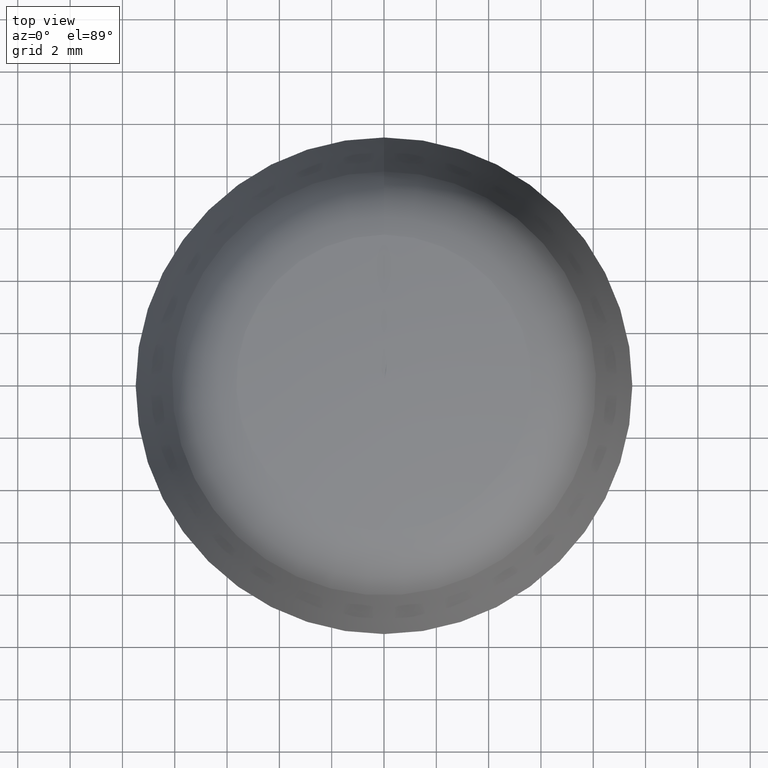
[diagram: clean part render]
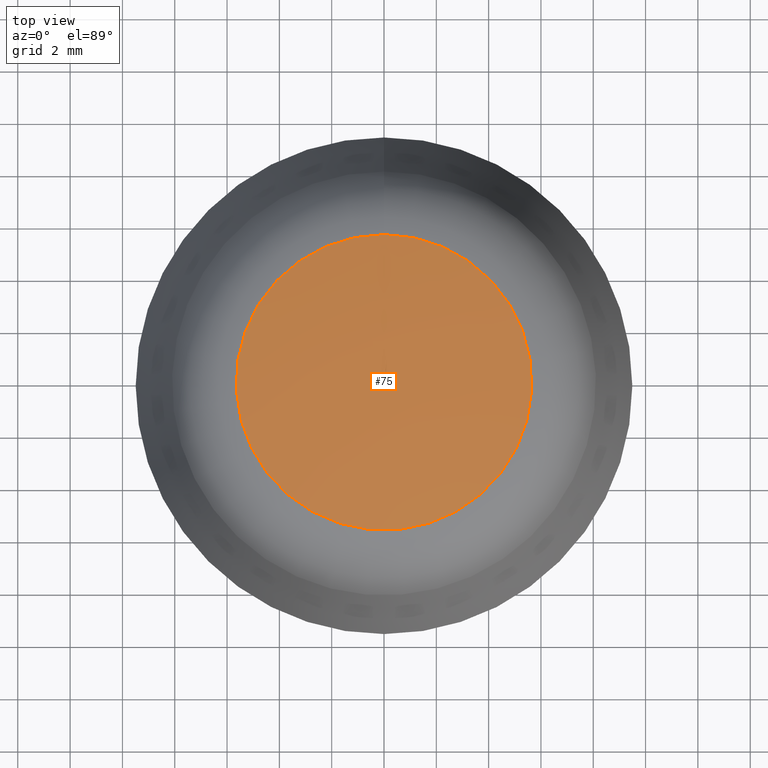
[diagram: same view with one face highlighted and labeled with its STEP entity id]
A machine part, top view. The second image highlights one B-rep face of the part: STEP entity #75.
In plain terms, the highlighted face is a freeform B-spline surface patch.
Its self-contained STEP definition (entity closure, byte-faithful):
#75 = ADVANCED_FACE( '', ( #85, #86 ), #87, .T. );
#85 = FACE_BOUND( '', #111, .T. );
#86 = FACE_OUTER_BOUND( '', #112, .T. );
#87 = ( B_SPLINE_SURFACE( 3, 3, ( ( #114, #115, #116, #117, #118, #119, #120 ), ( #121, #122, #123, #124, #125, #126, #127 ), ( #128, #129, #130, #131, #132, #133, #134 ), ( #135, #136, #137, #138, #139, #140, #141 ) ), .UNSPECIFIED., .F., .T., .F. )B_SPLINE_SURFACE_WITH_KNOTS( ( 4, 4 ), ( 4, 3, 4 ), ( 0.000000000000000, 6.28318530717959 ), ( -1.56945058362842, -1.49579099199942, -1.42213140037043 ), .UNSPECIFIED. )RATIONAL_B_SPLINE_SURFACE( ( ( 1.00000000000000, 0.333333333333333, 0.333333333333333, 1.00000000000000, 0.333333333333333, 0.333333333333333, 1.00000000000000 ), ( 0.998192239111499, 0.332730746370500, 0.332730746370500, 0.998192239111499, 0.332730746370500, 0.332730746370500, 0.998192239111499 ), ( 0.998192239111499, 0.332730746370500, 0.332730746370500, 0.998192239111499, 0.332730746370500, 0.332730746370500, 0.998192239111499 ), ( 1.00000000000000, 0.333333333333333, 0.333333333333333, 1.00000000000000, 0.333333333333333, 0.333333333333333, 1.00000000000000 ) ) )BOUNDED_SURFACE(  )REPRESENTATION_ITEM( '' )GEOMETRIC_REPRESENTATION_ITEM(  )SURFACE(  ) );
#111 = VERTEX_LOOP( '', #171 );
#112 = EDGE_LOOP( '', ( #172 ) );
#114 = CARTESIAN_POINT( '', ( 0.000000000000000, 5.65072872926940, 7.37536860387088 ) );
#115 = CARTESIAN_POINT( '', ( 11.3014574585388, 5.65072872926940, 7.37536860387088 ) );
#116 = CARTESIAN_POINT( '', ( 11.3014574585388, -5.65072872926940, 7.37536860387088 ) );
#117 = CARTESIAN_POINT( '', ( 0.000000000000000, -5.65072872926940, 7.37536860387088 ) );
#118 = CARTESIAN_POINT( '', ( -11.3014574585388, -5.65072872926940, 7.37536860387088 ) );
#119 = CARTESIAN_POINT( '', ( -11.3014574585388, 5.65072872926940, 7.37536860387088 ) );
#120 = CARTESIAN_POINT( '', ( 0.000000000000000, 5.65072872926940, 7.37536860387088 ) );
#121 = CARTESIAN_POINT( '', ( 0.000000000000000, 3.77929359492807, 7.65565330096397 ) );
#122 = CARTESIAN_POINT( '', ( 7.55858718985615, 3.77929359492807, 7.65565330096397 ) );
#123 = CARTESIAN_POINT( '', ( 7.55858718985615, -3.77929359492807, 7.65565330096398 ) );
#124 = CARTESIAN_POINT( '', ( 0.000000000000000, -3.77929359492807, 7.65565330096397 ) );
#125 = CARTESIAN_POINT( '', ( -7.55858718985615, -3.77929359492807, 7.65565330096398 ) );
#126 = CARTESIAN_POINT( '', ( -7.55858718985615, 3.77929359492807, 7.65565330096398 ) );
#127 = CARTESIAN_POINT( '', ( 0.000000000000000, 3.77929359492807, 7.65565330096397 ) );
#128 = CARTESIAN_POINT( '', ( 0.000000000000000, 1.89230612970154, 7.79745344041976 ) );
#129 = CARTESIAN_POINT( '', ( 3.78461225940309, 1.89230612970154, 7.79745344041976 ) );
#130 = CARTESIAN_POINT( '', ( 3.78461225940309, -1.89230612970154, 7.79745344041976 ) );
#131 = CARTESIAN_POINT( '', ( 0.000000000000000, -1.89230612970154, 7.79745344041976 ) );
#132 = CARTESIAN_POINT( '', ( -3.78461225940309, -1.89230612970154, 7.79745344041976 ) );
#133 = CARTESIAN_POINT( '', ( -3.78461225940309, 1.89230612970154, 7.79745344041976 ) );
#134 = CARTESIAN_POINT( '', ( 0.000000000000000, 1.89230612970154, 7.79745344041976 ) );
#135 = CARTESIAN_POINT( '', ( 0.000000000000000, 3.49655200626575E-015, 7.79999999999999 ) );
#136 = CARTESIAN_POINT( '', ( 6.77781283537976E-015, 3.49655200626575E-015, 7.80000000000000 ) );
#137 = CARTESIAN_POINT( '', ( 6.77781283537976E-015, -3.28126082911401E-015, 7.80000000000000 ) );
#138 = CARTESIAN_POINT( '', ( 0.000000000000000, -3.28126082911401E-015, 7.79999999999999 ) );
#139 = CARTESIAN_POINT( '', ( -6.77781283537976E-015, -3.28126082911401E-015, 7.80000000000000 ) );
#140 = CARTESIAN_POINT( '', ( -6.77781283537976E-015, 3.49655200626575E-015, 7.80000000000000 ) );
#141 = CARTESIAN_POINT( '', ( 0.000000000000000, 3.49655200626575E-015, 7.79999999999999 ) );
#171 = VERTEX_POINT( '', #212 );
#172 = ORIENTED_EDGE( '', *, *, #213, .F. );
#212 = CARTESIAN_POINT( '', ( -2.02454197445988E-032, 0.000000000000000, 7.80000000000000 ) );
#213 = EDGE_CURVE( '', #221, #221, #222, .T. );
#221 = VERTEX_POINT( '', #237 );
#222 = CIRCLE( '', #238, 5.65072872926940 );
#237 = CARTESIAN_POINT( '', ( 0.000000000000000, 5.65072872926940, 7.37536860387087 ) );
#238 = AXIS2_PLACEMENT_3D( '', #253, #254, #255 );
#253 = CARTESIAN_POINT( '', ( 0.000000000000000, 8.42142565574037E-017, 7.37536860387087 ) );
#254 = DIRECTION( '', ( 0.000000000000000, -6.12303176911189E-017, -1.00000000000000 ) );
#255 = DIRECTION( '', ( 0.000000000000000, 1.00000000000000, -6.12303176911189E-017 ) );